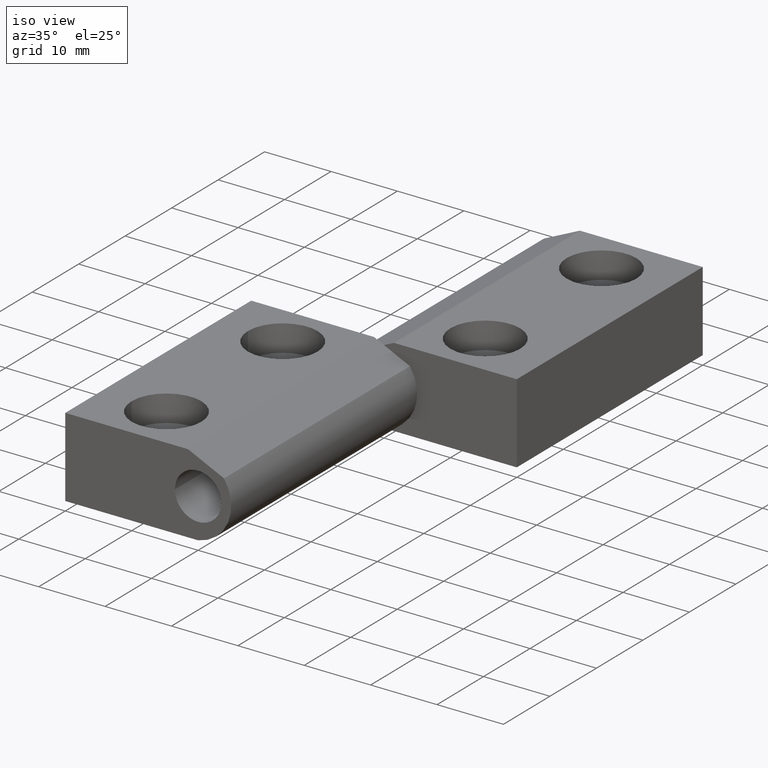
[diagram: clean part render]
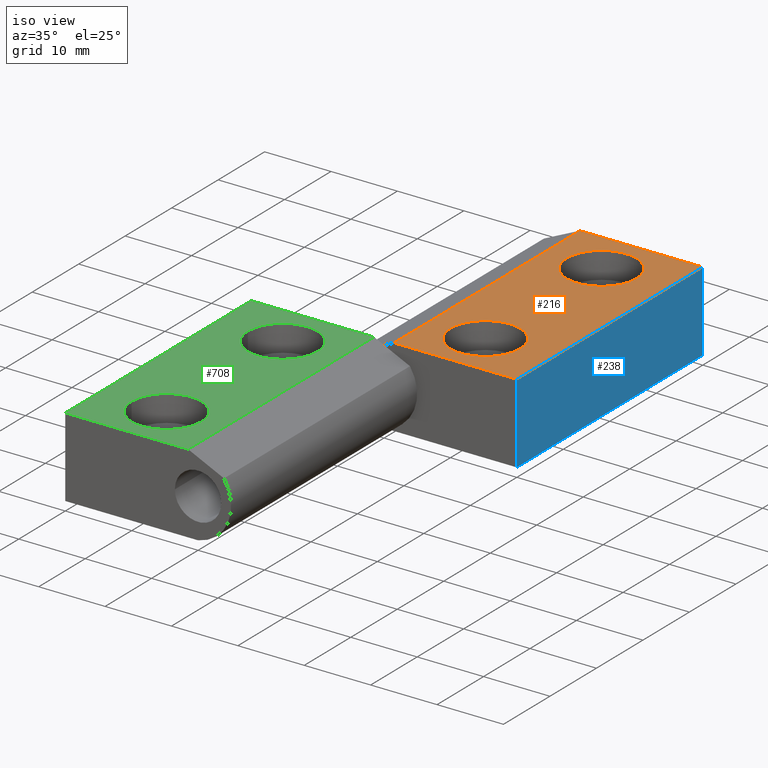
[diagram: same view with three faces highlighted in distinct colors, each labeled with its STEP entity id]
A machine part, iso view with three faces highlighted in distinct colors.
Their STEP definitions:

[orange] entity #216 — the highlighted planar face has unit normal (0, 0, -1).
#121=CARTESIAN_POINT('',(1.499996999993982,40.0,5.999987999975931));
#122=VERTEX_POINT('',#121);
#129=CARTESIAN_POINT('',(1.499996999993982,80.0,5.999987999975934));
#130=VERTEX_POINT('',#129);
#131=CARTESIAN_POINT('',(1.499996999993982,80.0,5.999987999975934));
#132=DIRECTION('',(0.0,-1.0,0.0));
#133=VECTOR('',#132,40.0);
#134=LINE('',#131,#133);
#135=EDGE_CURVE('',#130,#122,#134,.T.);
#146=CARTESIAN_POINT('',(1.499996999993982,80.0,5.999987999975934));
#147=DIRECTION('',(0.0,0.0,-1.0));
#148=DIRECTION('',(1.0,0.0,0.0));
#149=AXIS2_PLACEMENT_3D('',#146,#147,#148);
#150=PLANE('',#149);
#151=ORIENTED_EDGE('',*,*,#135,.T.);
#152=CARTESIAN_POINT('',(19.999959999920065,40.0,5.999987999975931));
#153=VERTEX_POINT('',#152);
#154=CARTESIAN_POINT('',(1.499996999993982,40.0,5.999987999975931));
#155=DIRECTION('',(1.0,0.0,0.0));
#156=VECTOR('',#155,18.499962999926083);
#157=LINE('',#154,#156);
#158=EDGE_CURVE('',#122,#153,#157,.T.);
#159=ORIENTED_EDGE('',*,*,#158,.T.);
#160=CARTESIAN_POINT('',(19.999959999920065,80.0,5.999987999975934));
#161=VERTEX_POINT('',#160);
#162=CARTESIAN_POINT('',(19.999959999920065,80.0,5.999987999975934));
#163=DIRECTION('',(0.0,-1.0,0.0));
#164=VECTOR('',#163,40.0);
#165=LINE('',#162,#164);
#166=EDGE_CURVE('',#161,#153,#165,.T.);
#167=ORIENTED_EDGE('',*,*,#166,.F.);
#168=CARTESIAN_POINT('',(1.499996999993982,80.0,5.999987999975934));
#169=DIRECTION('',(1.0,0.0,0.0));
#170=VECTOR('',#169,18.499962999926083);
#171=LINE('',#168,#170);
#172=EDGE_CURVE('',#130,#161,#171,.T.);
#173=ORIENTED_EDGE('',*,*,#172,.F.);
#174=EDGE_LOOP('',(#151,#159,#167,#173));
#175=FACE_OUTER_BOUND('',#174,.T.);
#176=CARTESIAN_POINT('',(4.749979999960033,72.500015000030089,5.999987999975933));
#177=VERTEX_POINT('',#176);
#178=CARTESIAN_POINT('',(15.249979999960033,72.500015000030089,5.999987999975933));
#179=VERTEX_POINT('',#178);
#180=CARTESIAN_POINT('',(9.999979999960033,72.500015000030089,5.999987999975933));
#181=DIRECTION('',(0.0,0.0,1.0));
#182=DIRECTION('',(1.0,0.0,0.0));
#183=AXIS2_PLACEMENT_3D('',#180,#181,#182);
#184=CIRCLE('',#183,5.250000000000000);
#185=EDGE_CURVE('',#177,#179,#184,.T.);
#186=ORIENTED_EDGE('',*,*,#185,.F.);
#187=CARTESIAN_POINT('',(9.999979999960033,72.500015000030089,5.999987999975933));
#188=DIRECTION('',(0.0,0.0,1.0));
#189=DIRECTION('',(1.0,0.0,0.0));
#190=AXIS2_PLACEMENT_3D('',#187,#188,#189);
#191=CIRCLE('',#190,5.250000000000000);
#192=EDGE_CURVE('',#179,#177,#191,.T.);
#193=ORIENTED_EDGE('',*,*,#192,.F.);
#194=EDGE_LOOP('',(#186,#193));
#195=FACE_BOUND('',#194,.T.);
#196=CARTESIAN_POINT('',(4.749979999960033,47.500065000130235,5.999987999975931));
#197=VERTEX_POINT('',#196);
#198=CARTESIAN_POINT('',(15.249979999960033,47.500065000130235,5.999987999975931));
#199=VERTEX_POINT('',#198);
#200=CARTESIAN_POINT('',(9.999979999960033,47.500065000130235,5.999987999975931));
#201=DIRECTION('',(0.0,0.0,1.0));
#202=DIRECTION('',(1.0,0.0,0.0));
#203=AXIS2_PLACEMENT_3D('',#200,#201,#202);
#204=CIRCLE('',#203,5.250000000000000);
#205=EDGE_CURVE('',#197,#199,#204,.T.);
#206=ORIENTED_EDGE('',*,*,#205,.F.);
#207=CARTESIAN_POINT('',(9.999979999960033,47.500065000130235,5.999987999975931));
#208=DIRECTION('',(0.0,0.0,1.0));
#209=DIRECTION('',(1.0,0.0,0.0));
#210=AXIS2_PLACEMENT_3D('',#207,#208,#209);
#211=CIRCLE('',#210,5.250000000000000);
#212=EDGE_CURVE('',#199,#197,#211,.T.);
#213=ORIENTED_EDGE('',*,*,#212,.F.);
#214=EDGE_LOOP('',(#206,#213));
#215=FACE_BOUND('',#214,.T.);
#216=ADVANCED_FACE('',(#175,#195,#215),#150,.F.);

[blue] entity #238 — the highlighted planar face has unit normal (-1, 0, 0).
#7=CARTESIAN_POINT('',(19.999959999920065,80.0,-5.999987999976378));
#8=VERTEX_POINT('',#7);
#9=CARTESIAN_POINT('',(19.999959999920065,40.0,-5.999987999976381));
#10=VERTEX_POINT('',#9);
#11=CARTESIAN_POINT('',(19.999959999920065,80.0,-5.999987999976378));
#12=DIRECTION('',(0.0,-1.0,0.0));
#13=VECTOR('',#12,40.0);
#14=LINE('',#11,#13);
#15=EDGE_CURVE('',#8,#10,#14,.T.);
#152=CARTESIAN_POINT('',(19.999959999920065,40.0,5.999987999975931));
#153=VERTEX_POINT('',#152);
#160=CARTESIAN_POINT('',(19.999959999920065,80.0,5.999987999975934));
#161=VERTEX_POINT('',#160);
#162=CARTESIAN_POINT('',(19.999959999920065,80.0,5.999987999975934));
#163=DIRECTION('',(0.0,-1.0,0.0));
#164=VECTOR('',#163,40.0);
#165=LINE('',#162,#164);
#166=EDGE_CURVE('',#161,#153,#165,.T.);
#217=CARTESIAN_POINT('',(19.999959999920065,80.0,5.999987999975934));
#218=DIRECTION('',(-1.0,0.0,0.0));
#219=DIRECTION('',(0.0,0.0,-1.0));
#220=AXIS2_PLACEMENT_3D('',#217,#218,#219);
#221=PLANE('',#220);
#222=ORIENTED_EDGE('',*,*,#166,.T.);
#223=CARTESIAN_POINT('',(19.999959999920065,40.0,5.999987999975931));
#224=DIRECTION('',(0.0,0.0,-1.0));
#225=VECTOR('',#224,11.999975999952312);
#226=LINE('',#223,#225);
#227=EDGE_CURVE('',#153,#10,#226,.T.);
#228=ORIENTED_EDGE('',*,*,#227,.T.);
#229=ORIENTED_EDGE('',*,*,#15,.F.);
#230=CARTESIAN_POINT('',(19.999959999920065,80.0,5.999987999975934));
#231=DIRECTION('',(0.0,0.0,-1.0));
#232=VECTOR('',#231,11.999975999952312);
#233=LINE('',#230,#232);
#234=EDGE_CURVE('',#161,#8,#233,.T.);
#235=ORIENTED_EDGE('',*,*,#234,.F.);
#236=EDGE_LOOP('',(#222,#228,#229,#235));
#237=FACE_OUTER_BOUND('',#236,.T.);
#238=ADVANCED_FACE('',(#237),#221,.F.);

[green] entity #708 — the highlighted planar face has unit normal (0, 0, -1).
#613=CARTESIAN_POINT('',(-1.499996999993982,40.0,5.999987999975931));
#614=VERTEX_POINT('',#613);
#621=CARTESIAN_POINT('',(-1.499996999993982,-3.673933E-016,5.999987999975929));
#622=VERTEX_POINT('',#621);
#623=CARTESIAN_POINT('',(-1.499996999993982,-3.673933E-016,5.999987999975929));
#624=DIRECTION('',(0.0,1.0,0.0));
#625=VECTOR('',#624,40.0);
#626=LINE('',#623,#625);
#627=EDGE_CURVE('',#622,#614,#626,.T.);
#638=CARTESIAN_POINT('',(-1.499996999993982,-3.673933E-016,5.999987999975929));
#639=DIRECTION('',(0.0,0.0,-1.0));
#640=DIRECTION('',(-1.0,0.0,0.0));
#641=AXIS2_PLACEMENT_3D('',#638,#639,#640);
#642=PLANE('',#641);
#643=ORIENTED_EDGE('',*,*,#627,.T.);
#644=CARTESIAN_POINT('',(-19.999959999920065,40.0,5.999987999975931));
#645=VERTEX_POINT('',#644);
#646=CARTESIAN_POINT('',(-1.499996999993982,40.0,5.999987999975931));
#647=DIRECTION('',(-1.0,0.0,0.0));
#648=VECTOR('',#647,18.499962999926083);
#649=LINE('',#646,#648);
#650=EDGE_CURVE('',#614,#645,#649,.T.);
#651=ORIENTED_EDGE('',*,*,#650,.T.);
#652=CARTESIAN_POINT('',(-19.999959999920065,-3.673933E-016,5.999987999975929));
#653=VERTEX_POINT('',#652);
#654=CARTESIAN_POINT('',(-19.999959999920065,-3.673933E-016,5.999987999975929));
#655=DIRECTION('',(0.0,1.0,0.0));
#656=VECTOR('',#655,40.0);
#657=LINE('',#654,#656);
#658=EDGE_CURVE('',#653,#645,#657,.T.);
#659=ORIENTED_EDGE('',*,*,#658,.F.);
#660=CARTESIAN_POINT('',(-1.499996999993982,-3.673933E-016,5.999987999975929));
#661=DIRECTION('',(-1.0,0.0,0.0));
#662=VECTOR('',#661,18.499962999926083);
#663=LINE('',#660,#662);
#664=EDGE_CURVE('',#622,#653,#663,.T.);
#665=ORIENTED_EDGE('',*,*,#664,.F.);
#666=EDGE_LOOP('',(#643,#651,#659,#665));
#667=FACE_OUTER_BOUND('',#666,.T.);
#668=CARTESIAN_POINT('',(-4.749979999960034,7.499984999969911,5.999987999975930));
#669=VERTEX_POINT('',#668);
#670=CARTESIAN_POINT('',(-15.249979999960033,7.499984999969911,5.999987999975930));
#671=VERTEX_POINT('',#670);
#672=CARTESIAN_POINT('',(-9.999979999960033,7.499984999969911,5.999987999975930));
#673=DIRECTION('',(-7.498799E-033,-1.224647E-016,1.0));
#674=DIRECTION('',(-1.0,1.224647E-016,7.498799E-033));
#675=AXIS2_PLACEMENT_3D('',#672,#673,#674);
#676=CIRCLE('',#675,5.250000000000000);
#677=EDGE_CURVE('',#669,#671,#676,.T.);
#678=ORIENTED_EDGE('',*,*,#677,.F.);
#679=CARTESIAN_POINT('',(-9.999979999960033,7.499984999969911,5.999987999975930));
#680=DIRECTION('',(-7.498799E-033,-1.224647E-016,1.0));
#681=DIRECTION('',(-1.0,1.224647E-016,7.498799E-033));
#682=AXIS2_PLACEMENT_3D('',#679,#680,#681);
#683=CIRCLE('',#682,5.250000000000000);
#684=EDGE_CURVE('',#671,#669,#683,.T.);
#685=ORIENTED_EDGE('',*,*,#684,.F.);
#686=EDGE_LOOP('',(#678,#685));
#687=FACE_BOUND('',#686,.T.);
#688=CARTESIAN_POINT('',(-4.749979999960033,32.499934999869765,5.999987999975931));
#689=VERTEX_POINT('',#688);
#690=CARTESIAN_POINT('',(-15.249979999960033,32.499934999869765,5.999987999975931));
#691=VERTEX_POINT('',#690);
#692=CARTESIAN_POINT('',(-9.999979999960033,32.499934999869765,5.999987999975931));
#693=DIRECTION('',(-7.498799E-033,-1.224647E-016,1.0));
#694=DIRECTION('',(-1.0,1.224647E-016,7.498799E-033));
#695=AXIS2_PLACEMENT_3D('',#692,#693,#694);
#696=CIRCLE('',#695,5.250000000000000);
#697=EDGE_CURVE('',#689,#691,#696,.T.);
#698=ORIENTED_EDGE('',*,*,#697,.F.);
#699=CARTESIAN_POINT('',(-9.999979999960033,32.499934999869765,5.999987999975931));
#700=DIRECTION('',(-7.498799E-033,-1.224647E-016,1.0));
#701=DIRECTION('',(-1.0,1.224647E-016,7.498799E-033));
#702=AXIS2_PLACEMENT_3D('',#699,#700,#701);
#703=CIRCLE('',#702,5.250000000000000);
#704=EDGE_CURVE('',#691,#689,#703,.T.);
#705=ORIENTED_EDGE('',*,*,#704,.F.);
#706=EDGE_LOOP('',(#698,#705));
#707=FACE_BOUND('',#706,.T.);
#708=ADVANCED_FACE('',(#667,#687,#707),#642,.F.);